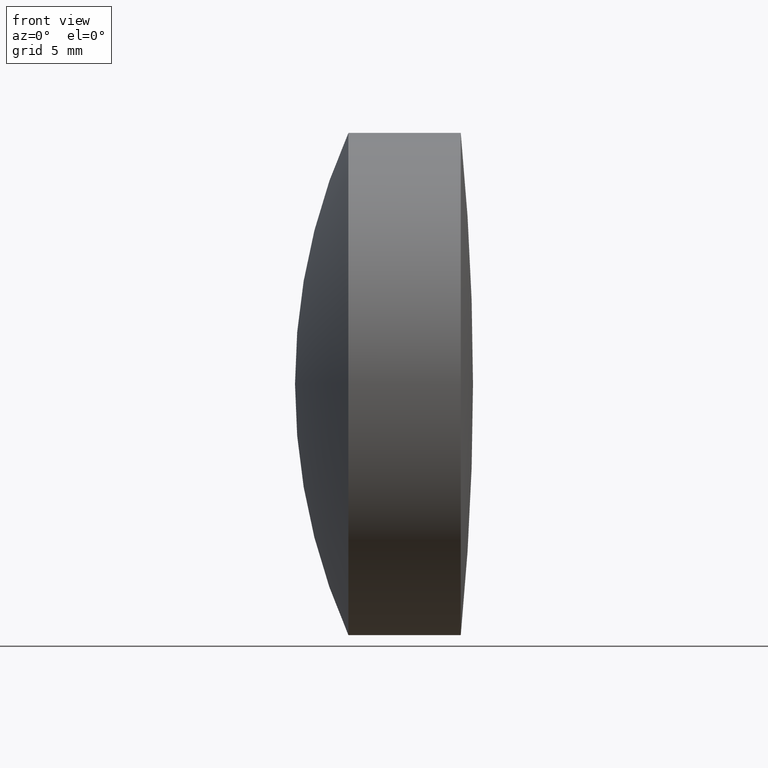
[diagram: clean part render]
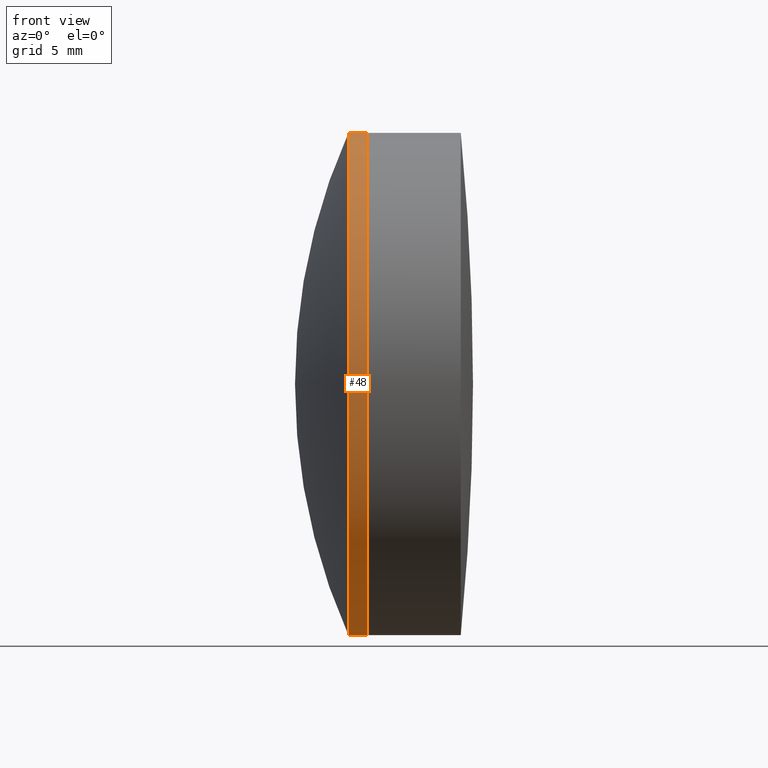
[diagram: same view with one face highlighted and labeled with its STEP entity id]
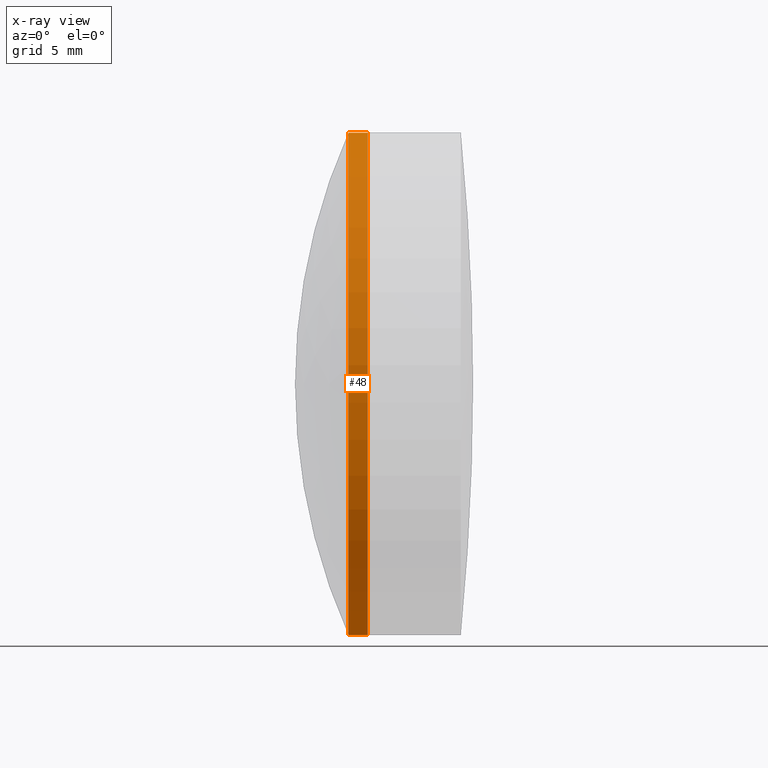
[diagram: x-ray of the same camera — body ghosted, the highlighted face saturated]
A machine part, front view. The second image highlights one B-rep face of the part: STEP entity #48.
The next image is the same camera in x-ray: the body ghosted, the highlighted face saturated — about 0% of this face is hidden behind the body in this view.
In plain terms, the highlighted cylindrical surface (partial cylindrical patch) has radius 12.7 mm, axis along (-1, -0, -0).
Its self-contained STEP definition (entity closure, byte-faithful):
#7 = EDGE_CURVE ( 'NONE', #239, #32, #9, .T. ) ;
#9 = CIRCLE ( 'NONE', #97, 12.69999999999999200 ) ;
#17 = CYLINDRICAL_SURFACE ( 'NONE', #44, 12.69999999999999200 ) ;
#26 = CIRCLE ( 'NONE', #162, 12.69999999999999200 ) ;
#32 = VERTEX_POINT ( 'NONE', #253 ) ;
#44 = AXIS2_PLACEMENT_3D ( 'NONE', #45, #290, #79 ) ;
#45 = CARTESIAN_POINT ( 'NONE',  ( -9.702612178336682500, 0.0000000000000000000, 0.0000000000000000000 ) ) ;
#48 = ADVANCED_FACE ( 'NONE', ( #265 ), #17, .T. ) ;
#52 = DIRECTION ( 'NONE',  ( 0.0000000000000000000, 0.0000000000000000000, 1.000000000000000000 ) ) ;
#60 = DIRECTION ( 'NONE',  ( -1.000000000000000000, -0.0000000000000000000, -0.0000000000000000000 ) ) ;
#68 = DIRECTION ( 'NONE',  ( -1.000000000000000000, -0.0000000000000000000, -0.0000000000000000000 ) ) ;
#79 = DIRECTION ( 'NONE',  ( 0.0000000000000000000, 0.0000000000000000000, 1.000000000000000000 ) ) ;
#81 = ORIENTED_EDGE ( 'NONE', *, *, #227, .F. ) ;
#90 = DIRECTION ( 'NONE',  ( -1.000000000000000000, -0.0000000000000000000, -0.0000000000000000000 ) ) ;
#95 = ORIENTED_EDGE ( 'NONE', *, *, #7, .F. ) ;
#97 = AXIS2_PLACEMENT_3D ( 'NONE', #347, #90, #52 ) ;
#120 = CARTESIAN_POINT ( 'NONE',  ( -9.702612178336682500, 0.0000000000000000000, 12.69999999999999200 ) ) ;
#138 = DIRECTION ( 'NONE',  ( 0.0000000000000000000, 0.0000000000000000000, 1.000000000000000000 ) ) ;
#162 = AXIS2_PLACEMENT_3D ( 'NONE', #173, #68, #138 ) ;
#168 = DIRECTION ( 'NONE',  ( -1.000000000000000000, -0.0000000000000000000, -0.0000000000000000000 ) ) ;
#173 = CARTESIAN_POINT ( 'NONE',  ( 233.6683955093282300, 0.0000000000000000000, 0.0000000000000000000 ) ) ;
#174 = EDGE_LOOP ( 'NONE', ( #81, #280, #268, #95 ) ) ;
#200 = VERTEX_POINT ( 'NONE', #237 ) ;
#223 = LINE ( 'NONE', #120, #259 ) ;
#227 = EDGE_CURVE ( 'NONE', #200, #239, #326, .T. ) ;
#237 = CARTESIAN_POINT ( 'NONE',  ( 233.6683955093282300, 1.555301434917137800E-015, -12.69999999999999200 ) ) ;
#239 = VERTEX_POINT ( 'NONE', #322 ) ;
#244 = VECTOR ( 'NONE', #60, 1000.000000000000000 ) ;
#253 = CARTESIAN_POINT ( 'NONE',  ( 232.6976002483854100, 0.0000000000000000000, 12.69999999999999600 ) ) ;
#259 = VECTOR ( 'NONE', #168, 1000.000000000000000 ) ;
#265 = FACE_OUTER_BOUND ( 'NONE', #174, .T. ) ;
#268 = ORIENTED_EDGE ( 'NONE', *, *, #334, .T. ) ;
#280 = ORIENTED_EDGE ( 'NONE', *, *, #316, .T. ) ;
#286 = CARTESIAN_POINT ( 'NONE',  ( 233.6683955093282300, 0.0000000000000000000, 12.69999999999999200 ) ) ;
#290 = DIRECTION ( 'NONE',  ( -1.000000000000000000, -0.0000000000000000000, -0.0000000000000000000 ) ) ;
#316 = EDGE_CURVE ( 'NONE', #200, #319, #26, .T. ) ;
#319 = VERTEX_POINT ( 'NONE', #286 ) ;
#321 = CARTESIAN_POINT ( 'NONE',  ( -9.702612178336682500, 1.555301434917137800E-015, -12.69999999999999200 ) ) ;
#322 = CARTESIAN_POINT ( 'NONE',  ( 232.6976002483854100, 1.555301434917138000E-015, -12.69999999999999900 ) ) ;
#326 = LINE ( 'NONE', #321, #244 ) ;
#334 = EDGE_CURVE ( 'NONE', #319, #32, #223, .T. ) ;
#347 = CARTESIAN_POINT ( 'NONE',  ( 232.6976002483854100, 0.0000000000000000000, 0.0000000000000000000 ) ) ;